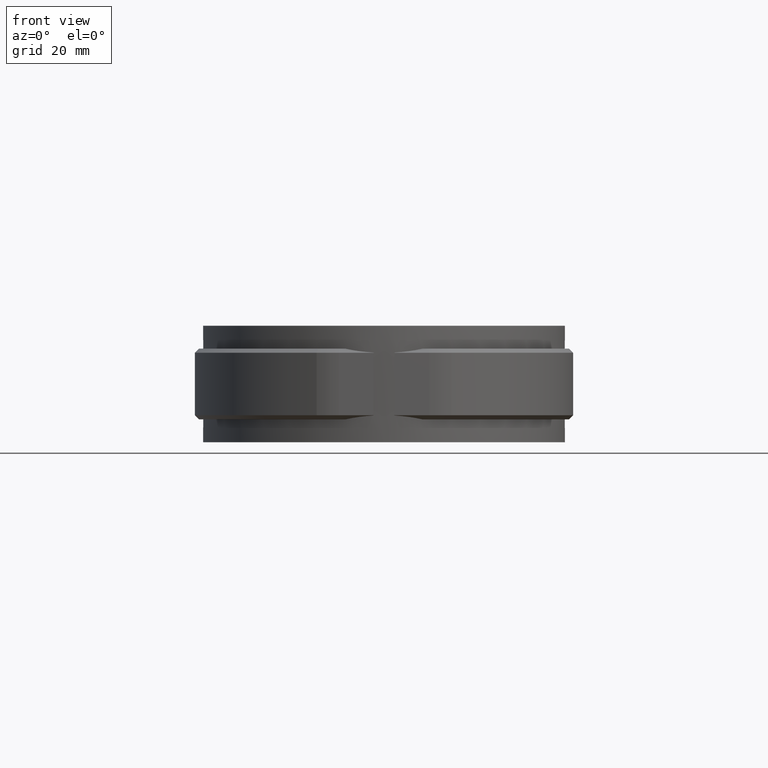
[diagram: clean part render]
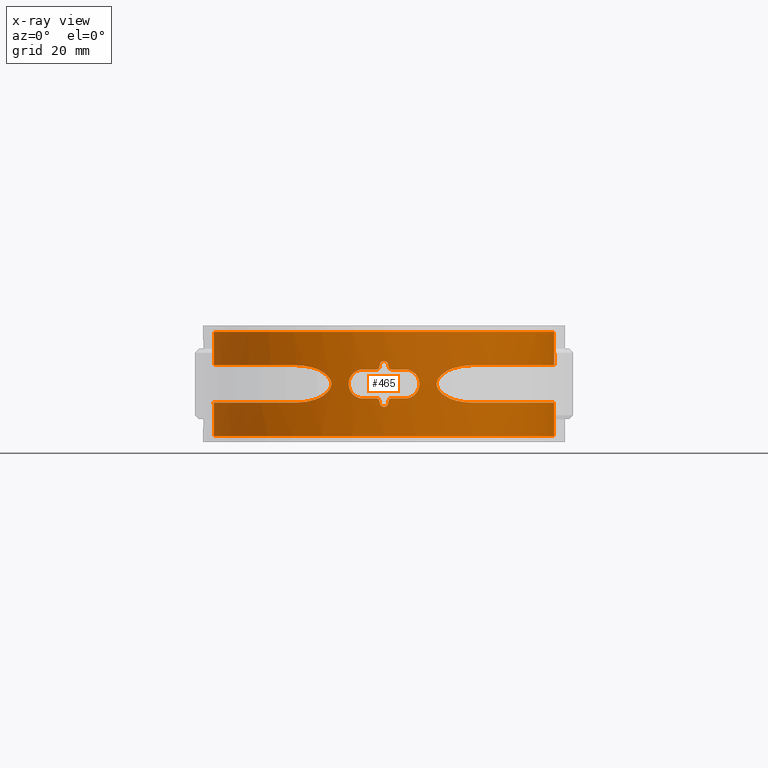
[diagram: x-ray — body ghosted, one internal face saturated and labeled with its STEP entity id]
A machine part, front view, then the same camera in x-ray: the body is ghosted and one INTERNAL B-rep face — a face not visible from any outside direction — is saturated and labeled: STEP entity #465.
In plain terms, the highlighted cylindrical surface (partial cylindrical patch) has radius 41 mm, axis along (0, 0, -1).
Its self-contained STEP definition (entity closure, byte-faithful):
#465 = ADVANCED_FACE( '', ( #833, #834 ), #835, .T. );
#833 = FACE_BOUND( '', #1599, .T. );
#834 = FACE_OUTER_BOUND( '', #1600, .T. );
#835 = CYLINDRICAL_SURFACE( '', #1601, 41.0000000000000 );
#1599 = EDGE_LOOP( '', ( #3098, #3099, #3100, #3101, #3102, #3103, #3104, #3105, #3106, #3107, #3108, #3109, #3110, #3111, #3112, #3113 ) );
#1600 = EDGE_LOOP( '', ( #3114, #3115, #3116, #3117, #3118, #3119, #3120, #3121, #3122, #3123, #3124, #3125, #3126, #3127, #3128, #3129 ) );
#1601 = AXIS2_PLACEMENT_3D( '', #3130, #3131, #3132 );
#3098 = ORIENTED_EDGE( '', *, *, #7267, .F. );
#3099 = ORIENTED_EDGE( '', *, *, #7268, .F. );
#3100 = ORIENTED_EDGE( '', *, *, #7269, .F. );
#3101 = ORIENTED_EDGE( '', *, *, #7270, .F. );
#3102 = ORIENTED_EDGE( '', *, *, #7271, .F. );
#3103 = ORIENTED_EDGE( '', *, *, #7272, .F. );
#3104 = ORIENTED_EDGE( '', *, *, #7273, .F. );
#3105 = ORIENTED_EDGE( '', *, *, #7274, .F. );
#3106 = ORIENTED_EDGE( '', *, *, #7275, .F. );
#3107 = ORIENTED_EDGE( '', *, *, #7230, .F. );
#3108 = ORIENTED_EDGE( '', *, *, #7234, .F. );
#3109 = ORIENTED_EDGE( '', *, *, #7266, .F. );
#3110 = ORIENTED_EDGE( '', *, *, #7276, .F. );
#3111 = ORIENTED_EDGE( '', *, *, #7277, .F. );
#3112 = ORIENTED_EDGE( '', *, *, #7278, .F. );
#3113 = ORIENTED_EDGE( '', *, *, #7279, .F. );
#3114 = ORIENTED_EDGE( '', *, *, #7280, .F. );
#3115 = ORIENTED_EDGE( '', *, *, #7281, .T. );
#3116 = ORIENTED_EDGE( '', *, *, #7282, .F. );
#3117 = ORIENTED_EDGE( '', *, *, #7283, .F. );
#3118 = ORIENTED_EDGE( '', *, *, #7284, .F. );
#3119 = ORIENTED_EDGE( '', *, *, #7285, .F. );
#3120 = ORIENTED_EDGE( '', *, *, #7286, .F. );
#3121 = ORIENTED_EDGE( '', *, *, #7287, .F. );
#3122 = ORIENTED_EDGE( '', *, *, #7288, .F. );
#3123 = ORIENTED_EDGE( '', *, *, #7289, .F. );
#3124 = ORIENTED_EDGE( '', *, *, #7290, .T. );
#3125 = ORIENTED_EDGE( '', *, *, #7291, .T. );
#3126 = ORIENTED_EDGE( '', *, *, #7292, .F. );
#3127 = ORIENTED_EDGE( '', *, *, #7293, .F. );
#3128 = ORIENTED_EDGE( '', *, *, #7294, .F. );
#3129 = ORIENTED_EDGE( '', *, *, #7295, .F. );
#3130 = CARTESIAN_POINT( '', ( 0.000000000000000, 0.000000000000000, -12.5000000000000 ) );
#3131 = DIRECTION( '', ( 0.000000000000000, 0.000000000000000, -1.00000000000000 ) );
#3132 = DIRECTION( '', ( -1.00000000000000, 6.16283340149655E-017, 0.000000000000000 ) );
#7230 = EDGE_CURVE( '', #8243, #8245, #8246, .F. );
#7234 = EDGE_CURVE( '', #8250, #8243, #8252, .T. );
#7266 = EDGE_CURVE( '', #8312, #8250, #8314, .F. );
#7267 = EDGE_CURVE( '', #8315, #8316, #8317, .T. );
#7268 = EDGE_CURVE( '', #8318, #8315, #8319, .F. );
#7269 = EDGE_CURVE( '', #8320, #8318, #8321, .T. );
#7270 = EDGE_CURVE( '', #8322, #8320, #8323, .F. );
#7271 = EDGE_CURVE( '', #8324, #8322, #8325, .T. );
#7272 = EDGE_CURVE( '', #8326, #8324, #8327, .F. );
#7273 = EDGE_CURVE( '', #8328, #8326, #8329, .T. );
#7274 = EDGE_CURVE( '', #8330, #8328, #8331, .F. );
#7275 = EDGE_CURVE( '', #8245, #8330, #8332, .T. );
#7276 = EDGE_CURVE( '', #8333, #8312, #8334, .T. );
#7277 = EDGE_CURVE( '', #8335, #8333, #8336, .F. );
#7278 = EDGE_CURVE( '', #8337, #8335, #8338, .T. );
#7279 = EDGE_CURVE( '', #8316, #8337, #8339, .F. );
#7280 = EDGE_CURVE( '', #8340, #8341, #8342, .T. );
#7281 = EDGE_CURVE( '', #8340, #8343, #8344, .T. );
#7282 = EDGE_CURVE( '', #8345, #8343, #8346, .T. );
#7283 = EDGE_CURVE( '', #8347, #8345, #8348, .T. );
#7284 = EDGE_CURVE( '', #8349, #8347, #8350, .T. );
#7285 = EDGE_CURVE( '', #8351, #8349, #8352, .T. );
#7286 = EDGE_CURVE( '', #8353, #8351, #8354, .T. );
#7287 = EDGE_CURVE( '', #8355, #8353, #8356, .T. );
#7288 = EDGE_CURVE( '', #8357, #8355, #8358, .T. );
#7289 = EDGE_CURVE( '', #8359, #8357, #8360, .T. );
#7290 = EDGE_CURVE( '', #8359, #8361, #8362, .T. );
#7291 = EDGE_CURVE( '', #8361, #8363, #8364, .T. );
#7292 = EDGE_CURVE( '', #8365, #8363, #8366, .T. );
#7293 = EDGE_CURVE( '', #8367, #8365, #8368, .T. );
#7294 = EDGE_CURVE( '', #8369, #8367, #8370, .T. );
#7295 = EDGE_CURVE( '', #8341, #8369, #8371, .T. );
#8243 = VERTEX_POINT( '', #9929 );
#8245 = VERTEX_POINT( '', #9932 );
#8246 = ELLIPSE( '', #9933, 186.777873057438, 41.0000000000000 );
#8250 = VERTEX_POINT( '', #9943 );
#8252 = B_SPLINE_CURVE_WITH_KNOTS( '', 3, ( #9946, #9947, #9948, #9949, #9950, #9951 ), .UNSPECIFIED., .F., .F., ( 4, 2, 4 ), ( 2.21134721367331E-018, 0.000335892743324593, 0.000671785486649184 ), .UNSPECIFIED. );
#8312 = VERTEX_POINT( '', #10406 );
#8314 = CIRCLE( '', #10409, 41.0000000000000 );
#8315 = VERTEX_POINT( '', #10410 );
#8316 = VERTEX_POINT( '', #10411 );
#8317 = B_SPLINE_CURVE_WITH_KNOTS( '', 3, ( #10412, #10413, #10414, #10415, #10416, #10417, #10418, #10419, #10420, #10421 ), .UNSPECIFIED., .F., .F., ( 4, 2, 2, 2, 4 ), ( 1.08420217248550E-019, 0.000671574166790834, 0.00134314833358167, 0.00201472250037250, 0.00268629666716334 ), .UNSPECIFIED. );
#8318 = VERTEX_POINT( '', #10422 );
#8319 = ELLIPSE( '', #10423, 186.777873057452, 41.0000000000000 );
#8320 = VERTEX_POINT( '', #10424 );
#8321 = B_SPLINE_CURVE_WITH_KNOTS( '', 3, ( #10425, #10426, #10427, #10428, #10429, #10430 ), .UNSPECIFIED., .F., .F., ( 4, 2, 4 ), ( 2.63797774002510E-018, 0.000335892743324650, 0.000671785486649297 ), .UNSPECIFIED. );
#8322 = VERTEX_POINT( '', #10431 );
#8323 = CIRCLE( '', #10432, 41.0000000000000 );
#8324 = VERTEX_POINT( '', #10433 );
#8325 = B_SPLINE_CURVE_WITH_KNOTS( '', 3, ( #10434, #10435, #10436, #10437, #10438, #10439, #10440, #10441, #10442, #10443, #10444, #10445, #10446, #10447, #10448, #10449, #10450, #10451, #10452, #10453, #10454, #10455, #10456, #10457, #10458, #10459, #10460, #10461, #10462, #10463, #10464, #10465, #10466, #10467 ), .UNSPECIFIED., .F., .F., ( 4, 2, 2, 2, 2, 2, 2, 2, 2, 2, 2, 2, 2, 2, 2, 2, 4 ), ( 5.27595548005020E-018, 0.000688129622012200, 0.00137625924402439, 0.00206438886603659, 0.00275251848804878, 0.00344064811006098, 0.00412877773207317, 0.00481690735408536, 0.00550503697609755, 0.00619316659810975, 0.00688129622012194, 0.00756942584213413, 0.00825755546414632, 0.00894568508615851, 0.00963381470817071, 0.0103219443301829, 0.0110100739521951 ), .UNSPECIFIED. );
#8326 = VERTEX_POINT( '', #10468 );
#8327 = CIRCLE( '', #10469, 41.0000000000000 );
#8328 = VERTEX_POINT( '', #10470 );
#8329 = B_SPLINE_CURVE_WITH_KNOTS( '', 3, ( #10471, #10472, #10473, #10474, #10475, #10476 ), .UNSPECIFIED., .F., .F., ( 4, 2, 4 ), ( 0.000000000000000, 0.000335894973553405, 0.000671789947106809 ), .UNSPECIFIED. );
#8330 = VERTEX_POINT( '', #10477 );
#8331 = ELLIPSE( '', #10478, 186.777968337168, 41.0000000000000 );
#8332 = B_SPLINE_CURVE_WITH_KNOTS( '', 3, ( #10479, #10480, #10481, #10482, #10483, #10484, #10485, #10486, #10487, #10488 ), .UNSPECIFIED., .F., .F., ( 4, 2, 2, 2, 4 ), ( 0.000000000000000, 0.000671574166790834, 0.00134314833358167, 0.00201472250037250, 0.00268629666716334 ), .UNSPECIFIED. );
#8333 = VERTEX_POINT( '', #10489 );
#8334 = B_SPLINE_CURVE_WITH_KNOTS( '', 3, ( #10490, #10491, #10492, #10493, #10494, #10495, #10496, #10497, #10498, #10499, #10500, #10501, #10502, #10503, #10504, #10505, #10506, #10507, #10508, #10509, #10510, #10511, #10512, #10513, #10514, #10515, #10516, #10517, #10518, #10519, #10520, #10521, #10522, #10523 ), .UNSPECIFIED., .F., .F., ( 4, 2, 2, 2, 2, 2, 2, 2, 2, 2, 2, 2, 2, 2, 2, 2, 4 ), ( 2.63797774002510E-018, 0.000688129622012189, 0.00137625924402438, 0.00206438886603656, 0.00275251848804875, 0.00344064811006094, 0.00412877773207313, 0.00481690735408531, 0.00550503697609750, 0.00619316659810969, 0.00688129622012188, 0.00756942584213407, 0.00825755546414626, 0.00894568508615845, 0.00963381470817064, 0.0103219443301828, 0.0110100739521950 ), .UNSPECIFIED. );
#8335 = VERTEX_POINT( '', #10524 );
#8336 = CIRCLE( '', #10525, 41.0000000000000 );
#8337 = VERTEX_POINT( '', #10526 );
#8338 = B_SPLINE_CURVE_WITH_KNOTS( '', 3, ( #10527, #10528, #10529, #10530, #10531, #10532 ), .UNSPECIFIED., .F., .F., ( 4, 2, 4 ), ( 0.000000000000000, 0.000335894973553420, 0.000671789947106840 ), .UNSPECIFIED. );
#8339 = ELLIPSE( '', #10533, 186.777968337208, 41.0000000000000 );
#8340 = VERTEX_POINT( '', #10534 );
#8341 = VERTEX_POINT( '', #10535 );
#8342 = B_SPLINE_CURVE_WITH_KNOTS( '', 3, ( #10536, #10537, #10538, #10539, #10540, #10541, #10542, #10543, #10544, #10545, #10546, #10547, #10548, #10549, #10550, #10551, #10552, #10553, #10554, #10555, #10556, #10557, #10558, #10559, #10560, #10561, #10562, #10563, #10564, #10565, #10566, #10567, #10568, #10569, #10570, #10571, #10572, #10573, #10574, #10575, #10576, #10577, #10578, #10579, #10580, #10581, #10582, #10583, #10584, #10585, #10586, #10587, #10588, #10589, #10590, #10591, #10592, #10593 ), .UNSPECIFIED., .F., .F., ( 4, 2, 2, 2, 2, 2, 2, 2, 2, 2, 2, 2, 2, 2, 2, 2, 2, 2, 2, 2, 2, 2, 2, 2, 2, 2, 2, 2, 4 ), ( 1.73472347597681E-018, 0.00624023216993618, 0.00936034825490427, 0.0109204062973883, 0.0124804643398723, 0.0187206965098085, 0.0218408125947766, 0.0249609286797447, 0.0312011608496809, 0.0343212769346490, 0.0358813349771330, 0.0374413930196171, 0.0436816251895533, 0.0499218573594895, 0.0514819154019736, 0.0530419734444576, 0.0561620895294258, 0.0624023216993620, 0.0639623797418460, 0.0655224377843301, 0.0686425538692982, 0.0748827860392344, 0.0780029021242025, 0.0795629601666866, 0.0811230182091706, 0.0873632503791069, 0.0904833664640750, 0.0936034825490431, 0.0998437147189794 ), .UNSPECIFIED. );
#8343 = VERTEX_POINT( '', #10594 );
#8344 = LINE( '', #10595, #10596 );
#8345 = VERTEX_POINT( '', #10597 );
#8346 = CIRCLE( '', #10598, 41.0000000000000 );
#8347 = VERTEX_POINT( '', #10599 );
#8348 = LINE( '', #10600, #10601 );
#8349 = VERTEX_POINT( '', #10602 );
#8350 = B_SPLINE_CURVE_WITH_KNOTS( '', 3, ( #10603, #10604, #10605, #10606, #10607, #10608, #10609, #10610, #10611, #10612, #10613, #10614, #10615, #10616, #10617, #10618, #10619, #10620, #10621, #10622, #10623, #10624, #10625, #10626, #10627, #10628, #10629, #10630, #10631, #10632, #10633, #10634, #10635, #10636, #10637, #10638, #10639, #10640, #10641, #10642, #10643, #10644, #10645, #10646, #10647, #10648, #10649, #10650, #10651, #10652, #10653, #10654, #10655, #10656, #10657, #10658, #10659, #10660 ), .UNSPECIFIED., .F., .F., ( 4, 2, 2, 2, 2, 2, 2, 2, 2, 2, 2, 2, 2, 2, 2, 2, 2, 2, 2, 2, 2, 2, 2, 2, 2, 2, 2, 2, 4 ), ( 0.000000000000000, 0.00624022679092022, 0.00936034018638033, 0.0109203968841104, 0.0124804535818404, 0.0187206803727606, 0.0218407937682208, 0.0249609071636809, 0.0312011339546011, 0.0343212473500612, 0.0358813040477912, 0.0374413607455213, 0.0436815875364415, 0.0499218143273617, 0.0514818710250918, 0.0530419277228218, 0.0561620411182819, 0.0624022679092021, 0.0639623246069322, 0.0655223813046622, 0.0686424947001223, 0.0748827214910425, 0.0780028348865027, 0.0795628915842327, 0.0811229482819628, 0.0873631750728830, 0.0904832884683431, 0.0936034018638032, 0.0998436286547234 ), .UNSPECIFIED. );
#8351 = VERTEX_POINT( '', #10661 );
#8352 = B_SPLINE_CURVE_WITH_KNOTS( '', 3, ( #10662, #10663, #10664, #10665, #10666, #10667, #10668, #10669, #10670, #10671 ), .UNSPECIFIED., .F., .F., ( 4, 2, 2, 2, 4 ), ( 7.75791922889773E-018, 0.00191596705355848, 0.00383193410711695, 0.00574790116067541, 0.00766386821423388 ), .UNSPECIFIED. );
#8353 = VERTEX_POINT( '', #10672 );
#8354 = B_SPLINE_CURVE_WITH_KNOTS( '', 3, ( #10673, #10674, #10675, #10676, #10677, #10678, #10679, #10680, #10681, #10682, #10683, #10684, #10685, #10686, #10687, #10688, #10689, #10690, #10691, #10692 ), .UNSPECIFIED., .F., .F., ( 4, 2, 2, 2, 2, 2, 2, 2, 2, 4 ), ( 0.000000000000000, 0.000831438154686182, 0.00166287630937236, 0.00249431446405854, 0.00291003354140164, 0.00332575261874473, 0.00415719077343091, 0.00498862892811709, 0.00582006708280327, 0.00665150523748945 ), .UNSPECIFIED. );
#8355 = VERTEX_POINT( '', #10693 );
#8356 = B_SPLINE_CURVE_WITH_KNOTS( '', 3, ( #10694, #10695, #10696, #10697, #10698, #10699, #10700, #10701, #10702, #10703 ), .UNSPECIFIED., .F., .F., ( 4, 2, 2, 2, 4 ), ( 0.000000000000000, 0.00193123202437198, 0.00386246404874397, 0.00579369607311595, 0.00772492809748794 ), .UNSPECIFIED. );
#8357 = VERTEX_POINT( '', #10704 );
#8358 = B_SPLINE_CURVE_WITH_KNOTS( '', 3, ( #10705, #10706, #10707, #10708, #10709, #10710, #10711, #10712, #10713, #10714, #10715, #10716, #10717, #10718, #10719, #10720, #10721, #10722, #10723, #10724, #10725, #10726, #10727, #10728, #10729, #10730, #10731, #10732, #10733, #10734, #10735, #10736, #10737, #10738, #10739, #10740, #10741, #10742, #10743, #10744, #10745, #10746, #10747, #10748, #10749, #10750, #10751, #10752, #10753, #10754, #10755, #10756, #10757, #10758, #10759, #10760, #10761, #10762 ), .UNSPECIFIED., .F., .F., ( 4, 2, 2, 2, 2, 2, 2, 2, 2, 2, 2, 2, 2, 2, 2, 2, 2, 2, 2, 2, 2, 2, 2, 2, 2, 2, 2, 2, 4 ), ( 1.73472347597681E-018, 0.00624023216993619, 0.00936034825490429, 0.0109204062973883, 0.0124804643398724, 0.0187206965098086, 0.0218408125947767, 0.0249609286797448, 0.0312011608496809, 0.0343212769346491, 0.0358813349771331, 0.0374413930196172, 0.0436816251895534, 0.0499218573594896, 0.0514819154019736, 0.0530419734444577, 0.0561620895294258, 0.0624023216993620, 0.0639623797418461, 0.0655224377843301, 0.0686425538692982, 0.0748827860392344, 0.0780029021242025, 0.0795629601666866, 0.0811230182091707, 0.0873632503791069, 0.0904833664640750, 0.0936034825490431, 0.0998437147189794 ), .UNSPECIFIED. );
#8359 = VERTEX_POINT( '', #10763 );
#8360 = LINE( '', #10764, #10765 );
#8361 = VERTEX_POINT( '', #10766 );
#8362 = CIRCLE( '', #10767, 41.0000000000000 );
#8363 = VERTEX_POINT( '', #10768 );
#8364 = LINE( '', #10769, #10770 );
#8365 = VERTEX_POINT( '', #10771 );
#8366 = B_SPLINE_CURVE_WITH_KNOTS( '', 3, ( #10772, #10773, #10774, #10775, #10776, #10777, #10778, #10779, #10780, #10781, #10782, #10783, #10784, #10785, #10786, #10787, #10788, #10789, #10790, #10791, #10792, #10793, #10794, #10795, #10796, #10797, #10798, #10799, #10800, #10801, #10802, #10803, #10804, #10805, #10806, #10807, #10808, #10809, #10810, #10811, #10812, #10813, #10814, #10815, #10816, #10817, #10818, #10819, #10820, #10821, #10822, #10823, #10824, #10825, #10826, #10827, #10828, #10829 ), .UNSPECIFIED., .F., .F., ( 4, 2, 2, 2, 2, 2, 2, 2, 2, 2, 2, 2, 2, 2, 2, 2, 2, 2, 2, 2, 2, 2, 2, 2, 2, 2, 2, 2, 4 ), ( 9.81307786677359E-018, 0.00624022679092019, 0.00936034018638029, 0.0109203968841103, 0.0124804535818404, 0.0187206803727606, 0.0218407937682207, 0.0249609071636808, 0.0312011339546010, 0.0343212473500611, 0.0358813040477912, 0.0374413607455212, 0.0436815875364414, 0.0499218143273616, 0.0514818710250917, 0.0530419277228218, 0.0561620411182819, 0.0624022679092021, 0.0639623246069322, 0.0655223813046622, 0.0686424947001223, 0.0748827214910425, 0.0780028348865027, 0.0795628915842327, 0.0811229482819628, 0.0873631750728830, 0.0904832884683431, 0.0936034018638032, 0.0998436286547234 ), .UNSPECIFIED. );
#8367 = VERTEX_POINT( '', #10830 );
#8368 = B_SPLINE_CURVE_WITH_KNOTS( '', 3, ( #10831, #10832, #10833, #10834, #10835, #10836, #10837, #10838, #10839, #10840 ), .UNSPECIFIED., .F., .F., ( 4, 2, 2, 2, 4 ), ( 9.86180092906132E-016, 0.00191596705355922, 0.00383193410711744, 0.00574790116067567, 0.00766386821423390 ), .UNSPECIFIED. );
#8369 = VERTEX_POINT( '', #10841 );
#8370 = B_SPLINE_CURVE_WITH_KNOTS( '', 3, ( #10842, #10843, #10844, #10845, #10846, #10847, #10848, #10849, #10850, #10851, #10852, #10853, #10854, #10855, #10856, #10857, #10858, #10859, #10860, #10861 ), .UNSPECIFIED., .F., .F., ( 4, 2, 2, 2, 2, 2, 2, 2, 2, 4 ), ( 0.000000000000000, 0.000831438154686251, 0.00166287630937250, 0.00249431446405875, 0.00291003354140188, 0.00332575261874500, 0.00415719077343125, 0.00498862892811750, 0.00582006708280375, 0.00665150523749000 ), .UNSPECIFIED. );
#8371 = B_SPLINE_CURVE_WITH_KNOTS( '', 3, ( #10862, #10863, #10864, #10865, #10866, #10867, #10868, #10869, #10870, #10871 ), .UNSPECIFIED., .F., .F., ( 4, 2, 2, 2, 4 ), ( 0.000000000000000, 0.00193123202437173, 0.00386246404874347, 0.00579369607311520, 0.00772492809748694 ), .UNSPECIFIED. );
#9929 = CARTESIAN_POINT( '', ( -1.16219500000001, -40.9835247725470, -3.89024399999999 ) );
#9932 = CARTESIAN_POINT( '', ( -0.975609757981835, -40.9883908637572, -4.71951218674743 ) );
#9933 = AXIS2_PLACEMENT_3D( '', #14298, #14299, #14300 );
#9943 = CARTESIAN_POINT( '', ( -1.64999999999996, -40.9667853266521, -3.49999999999999 ) );
#9946 = CARTESIAN_POINT( '', ( -1.64999999999996, -40.9667853266521, -3.50000000000000 ) );
#9947 = CARTESIAN_POINT( '', ( -1.53651666657476, -40.9713560416511, -3.49999999951294 ) );
#9948 = CARTESIAN_POINT( '', ( -1.42637767402739, -40.9752768915356, -3.53860838388255 ) );
#9949 = CARTESIAN_POINT( '', ( -1.24905052409405, -40.9810656571451, -3.68042415403882 ) );
#9950 = CARTESIAN_POINT( '', ( -1.18712614781943, -40.9828177846659, -3.77943889635967 ) );
#9951 = CARTESIAN_POINT( '', ( -1.16219500000001, -40.9835247725470, -3.89024399999999 ) );
#10406 = CARTESIAN_POINT( '', ( -4.99999999999995, -40.6939798987516, -3.49999999999999 ) );
#10409 = AXIS2_PLACEMENT_3D( '', #14335, #14336, #14337 );
#10410 = CARTESIAN_POINT( '', ( 0.975609757981830, -40.9883908637572, 4.71951218674745 ) );
#10411 = CARTESIAN_POINT( '', ( -0.975610000000001, -40.9883908579966, 4.71951200000000 ) );
#10412 = CARTESIAN_POINT( '', ( 0.975609757981829, -40.9883908637572, 4.71951218674745 ) );
#10413 = CARTESIAN_POINT( '', ( 0.925763168011452, -40.9895773172517, 4.94105249648842 ) );
#10414 = CARTESIAN_POINT( '', ( 0.802005698969524, -40.9925387307254, 5.13901852027221 ) );
#10415 = CARTESIAN_POINT( '', ( 0.447393622458611, -40.9979424322463, 5.42271163399464 ) );
#10416 = CARTESIAN_POINT( '', ( 0.227081011032095, -41.0000000031880, 5.50000011143156 ) );
#10417 = CARTESIAN_POINT( '', ( -0.227082162214952, -40.9999999968121, 5.49999989543548 ) );
#10418 = CARTESIAN_POINT( '', ( -0.447405711665567, -40.9979422732895, 5.42270422268405 ) );
#10419 = CARTESIAN_POINT( '', ( -0.802005289724038, -40.9925387116981, 5.13901690743699 ) );
#10420 = CARTESIAN_POINT( '', ( -0.925763452085173, -40.9895773107846, 4.94105232084168 ) );
#10421 = CARTESIAN_POINT( '', ( -0.975610000000001, -40.9883908579966, 4.71951200000000 ) );
#10422 = CARTESIAN_POINT( '', ( 1.16219499999999, -40.9835247725470, 3.89024400000000 ) );
#10423 = AXIS2_PLACEMENT_3D( '', #14338, #14339, #14340 );
#10424 = CARTESIAN_POINT( '', ( 1.65000000000005, -40.9667853266521, 3.50000000000000 ) );
#10425 = CARTESIAN_POINT( '', ( 1.65000000000005, -40.9667853266521, 3.49999999999999 ) );
#10426 = CARTESIAN_POINT( '', ( 1.53651666657483, -40.9713560416511, 3.49999999951292 ) );
#10427 = CARTESIAN_POINT( '', ( 1.42637767402744, -40.9752768915356, 3.53860838388253 ) );
#10428 = CARTESIAN_POINT( '', ( 1.24905052409406, -40.9810656571451, 3.68042415403881 ) );
#10429 = CARTESIAN_POINT( '', ( 1.18712614781942, -40.9828177846659, 3.77943889635967 ) );
#10430 = CARTESIAN_POINT( '', ( 1.16219499999999, -40.9835247725470, 3.89024400000000 ) );
#10431 = CARTESIAN_POINT( '', ( 5.00000000000004, -40.6939798987516, 3.50000000000001 ) );
#10432 = AXIS2_PLACEMENT_3D( '', #14341, #14342, #14343 );
#10433 = CARTESIAN_POINT( '', ( 5.00000000000004, -40.6939798987516, -3.49999999999999 ) );
#10434 = CARTESIAN_POINT( '', ( 5.00000000000004, -40.6939798987516, -3.50000000000002 ) );
#10435 = CARTESIAN_POINT( '', ( 5.23096274637325, -40.6656018994815, -3.50000000000002 ) );
#10436 = CARTESIAN_POINT( '', ( 5.45783142829143, -40.6357326567652, -3.47736464133885 ) );
#10437 = CARTESIAN_POINT( '', ( 5.90378777278409, -40.5733407841364, -3.38892934823538 ) );
#10438 = CARTESIAN_POINT( '', ( 6.12509801952410, -40.5404601344444, -3.32210998994858 ) );
#10439 = CARTESIAN_POINT( '', ( 6.54766795793600, -40.4743595128308, -3.14753621596820 ) );
#10440 = CARTESIAN_POINT( '', ( 6.74804660481484, -40.4413265822082, -3.04075624735714 ) );
#10441 = CARTESIAN_POINT( '', ( 7.12735373686826, -40.3762040986906, -2.78858952997369 ) );
#10442 = CARTESIAN_POINT( '', ( 7.30729633441415, -40.3439018002663, -2.64165168159092 ) );
#10443 = CARTESIAN_POINT( '', ( 7.63038430555085, -40.2840443294622, -2.32013326918194 ) );
#10444 = CARTESIAN_POINT( '', ( 7.77549722043973, -40.2561640135411, -2.14462971807600 ) );
#10445 = CARTESIAN_POINT( '', ( 8.03211134382634, -40.2057494081452, -1.76327032725078 ) );
#10446 = CARTESIAN_POINT( '', ( 8.14201818355735, -40.1835242013315, -1.55884340630319 ) );
#10447 = CARTESIAN_POINT( '', ( 8.31810763079867, -40.1474427925718, -1.13685213709418 ) );
#10448 = CARTESIAN_POINT( '', ( 8.38582085039330, -40.1332803178743, -0.916573088931497 ) );
#10449 = CARTESIAN_POINT( '', ( 8.47721444358778, -40.1140750321554, -0.461377038457589 ) );
#10450 = CARTESIAN_POINT( '', ( 8.49978992563415, -40.1092703905914, -0.232768203784279 ) );
#10451 = CARTESIAN_POINT( '', ( 8.50020718421148, -40.1091819646195, 0.226407216884869 ) );
#10452 = CARTESIAN_POINT( '', ( 8.47733112674555, -40.1140496811669, 0.459590061325888 ) );
#10453 = CARTESIAN_POINT( '', ( 8.38710963868419, -40.1330103127626, 0.911341365809616 ) );
#10454 = CARTESIAN_POINT( '', ( 8.32038124472901, -40.1469721884948, 1.13048604967823 ) );
#10455 = CARTESIAN_POINT( '', ( 8.14382967027043, -40.1831576442548, 1.55539876661665 ) );
#10456 = CARTESIAN_POINT( '', ( 8.03357492031817, -40.2054533064194, 1.76054879452900 ) );
#10457 = CARTESIAN_POINT( '', ( 7.77919898760970, -40.2554451557327, 2.13966395547761 ) );
#10458 = CARTESIAN_POINT( '', ( 7.63409835237039, -40.2833482775417, 2.31618801100058 ) );
#10459 = CARTESIAN_POINT( '', ( 7.30735969115506, -40.3438979332373, 2.64183502283848 ) );
#10460 = CARTESIAN_POINT( '', ( 7.13087699618605, -40.3755792827542, 2.78585998561067 ) );
#10461 = CARTESIAN_POINT( '', ( 6.75270263520294, -40.4405466861320, 3.03803984583057 ) );
#10462 = CARTESIAN_POINT( '', ( 6.54864375051778, -40.4742006510111, 3.14704402356577 ) );
#10463 = CARTESIAN_POINT( '', ( 6.12644708780977, -40.5402552950739, 3.32164123749746 ) );
#10464 = CARTESIAN_POINT( '', ( 5.90909724577156, -40.5725714061867, 3.38755621314808 ) );
#10465 = CARTESIAN_POINT( '', ( 5.46188170333050, -40.6351920018711, 3.47687506126350 ) );
#10466 = CARTESIAN_POINT( '', ( 5.23096110318785, -40.6656021013769, 3.50000000000001 ) );
#10467 = CARTESIAN_POINT( '', ( 5.00000000000005, -40.6939798987516, 3.50000000000001 ) );
#10468 = CARTESIAN_POINT( '', ( 1.65000000000002, -40.9667853266521, -3.49999999999999 ) );
#10469 = AXIS2_PLACEMENT_3D( '', #14344, #14345, #14346 );
#10470 = CARTESIAN_POINT( '', ( 1.16219512100914, -40.9835247691155, -3.89024390662629 ) );
#10471 = CARTESIAN_POINT( '', ( 1.16219512100914, -40.9835247691155, -3.89024390662629 ) );
#10472 = CARTESIAN_POINT( '', ( 1.18712626199284, -40.9828177813545, -3.77943883114633 ) );
#10473 = CARTESIAN_POINT( '', ( 1.24904834749449, -40.9810657261259, -3.68042631638131 ) );
#10474 = CARTESIAN_POINT( '', ( 1.42637793620379, -40.9752768850503, -3.53860782463066 ) );
#10475 = CARTESIAN_POINT( '', ( 1.53651669485123, -40.9713560405122, -3.50000000000002 ) );
#10476 = CARTESIAN_POINT( '', ( 1.65000000000002, -40.9667853266521, -3.50000000000002 ) );
#10477 = CARTESIAN_POINT( '', ( 0.975609999999999, -40.9883908579966, -4.71951200000000 ) );
#10478 = AXIS2_PLACEMENT_3D( '', #14347, #14348, #14349 );
#10479 = CARTESIAN_POINT( '', ( -0.975609757981835, -40.9883908637572, -4.71951218674743 ) );
#10480 = CARTESIAN_POINT( '', ( -0.925763168011458, -40.9895773172517, -4.94105249648841 ) );
#10481 = CARTESIAN_POINT( '', ( -0.802005698969532, -40.9925387307254, -5.13901852027220 ) );
#10482 = CARTESIAN_POINT( '', ( -0.447393622458619, -40.9979424322463, -5.42271163399462 ) );
#10483 = CARTESIAN_POINT( '', ( -0.227081011032103, -41.0000000031880, -5.50000011143155 ) );
#10484 = CARTESIAN_POINT( '', ( 0.227082162214945, -40.9999999968120, -5.49999989543546 ) );
#10485 = CARTESIAN_POINT( '', ( 0.447405711665560, -40.9979422732895, -5.42270422268404 ) );
#10486 = CARTESIAN_POINT( '', ( 0.802005289724033, -40.9925387116981, -5.13901690743698 ) );
#10487 = CARTESIAN_POINT( '', ( 0.925763452085169, -40.9895773107847, -4.94105232084167 ) );
#10488 = CARTESIAN_POINT( '', ( 0.975609999999998, -40.9883908579966, -4.71951199999999 ) );
#10489 = CARTESIAN_POINT( '', ( -4.99999999999995, -40.6939798987516, 3.50000000000000 ) );
#10490 = CARTESIAN_POINT( '', ( -4.99999999999995, -40.6939798987516, 3.49999999999999 ) );
#10491 = CARTESIAN_POINT( '', ( -5.23096274637316, -40.6656018994815, 3.49999999999999 ) );
#10492 = CARTESIAN_POINT( '', ( -5.45783142829133, -40.6357326567652, 3.47736464133883 ) );
#10493 = CARTESIAN_POINT( '', ( -5.90378777278399, -40.5733407841364, 3.38892934823535 ) );
#10494 = CARTESIAN_POINT( '', ( -6.12509801952400, -40.5404601344445, 3.32210998994855 ) );
#10495 = CARTESIAN_POINT( '', ( -6.54766795793590, -40.4743595128308, 3.14753621596818 ) );
#10496 = CARTESIAN_POINT( '', ( -6.74804660481473, -40.4413265822082, 3.04075624735712 ) );
#10497 = CARTESIAN_POINT( '', ( -7.12735373686815, -40.3762040986907, 2.78858952997367 ) );
#10498 = CARTESIAN_POINT( '', ( -7.30729633441404, -40.3439018002664, 2.64165168159090 ) );
#10499 = CARTESIAN_POINT( '', ( -7.63038430555075, -40.2840443294623, 2.32013326918193 ) );
#10500 = CARTESIAN_POINT( '', ( -7.77549722043962, -40.2561640135412, 2.14462971807598 ) );
#10501 = CARTESIAN_POINT( '', ( -8.03211134382622, -40.2057494081452, 1.76327032725076 ) );
#10502 = CARTESIAN_POINT( '', ( -8.14201818355724, -40.1835242013315, 1.55884340630318 ) );
#10503 = CARTESIAN_POINT( '', ( -8.31810763079856, -40.1474427925718, 1.13685213709417 ) );
#10504 = CARTESIAN_POINT( '', ( -8.38582085039318, -40.1332803178743, 0.916573088931489 ) );
#10505 = CARTESIAN_POINT( '', ( -8.47721444358767, -40.1140750321554, 0.461377038457584 ) );
#10506 = CARTESIAN_POINT( '', ( -8.49978992563404, -40.1092703905914, 0.232768203784276 ) );
#10507 = CARTESIAN_POINT( '', ( -8.50020718421137, -40.1091819646195, -0.226407216884869 ) );
#10508 = CARTESIAN_POINT( '', ( -8.47733112674544, -40.1140496811669, -0.459590061325888 ) );
#10509 = CARTESIAN_POINT( '', ( -8.38710963868407, -40.1330103127626, -0.911341365809613 ) );
#10510 = CARTESIAN_POINT( '', ( -8.32038124472890, -40.1469721884948, -1.13048604967823 ) );
#10511 = CARTESIAN_POINT( '', ( -8.14382967027031, -40.1831576442548, -1.55539876661664 ) );
#10512 = CARTESIAN_POINT( '', ( -8.03357492031806, -40.2054533064194, -1.76054879452900 ) );
#10513 = CARTESIAN_POINT( '', ( -7.77919898760959, -40.2554451557328, -2.13966395547760 ) );
#10514 = CARTESIAN_POINT( '', ( -7.63409835237028, -40.2833482775417, -2.31618801100057 ) );
#10515 = CARTESIAN_POINT( '', ( -7.30735969115495, -40.3438979332373, -2.64183502283847 ) );
#10516 = CARTESIAN_POINT( '', ( -7.13087699618595, -40.3755792827542, -2.78585998561066 ) );
#10517 = CARTESIAN_POINT( '', ( -6.75270263520284, -40.4405466861321, -3.03803984583055 ) );
#10518 = CARTESIAN_POINT( '', ( -6.54864375051769, -40.4742006510111, -3.14704402356575 ) );
#10519 = CARTESIAN_POINT( '', ( -6.12644708780967, -40.5402552950739, -3.32164123749744 ) );
#10520 = CARTESIAN_POINT( '', ( -5.90909724577146, -40.5725714061867, -3.38755621314807 ) );
#10521 = CARTESIAN_POINT( '', ( -5.46188170333041, -40.6351920018711, -3.47687506126348 ) );
#10522 = CARTESIAN_POINT( '', ( -5.23096110318776, -40.6656021013769, -3.49999999999999 ) );
#10523 = CARTESIAN_POINT( '', ( -4.99999999999995, -40.6939798987516, -3.49999999999999 ) );
#10524 = CARTESIAN_POINT( '', ( -1.65000000000002, -40.9667853266521, 3.50000000000001 ) );
#10525 = AXIS2_PLACEMENT_3D( '', #14350, #14351, #14352 );
#10526 = CARTESIAN_POINT( '', ( -1.16219512100910, -40.9835247691155, 3.89024390662629 ) );
#10527 = CARTESIAN_POINT( '', ( -1.16219512100910, -40.9835247691155, 3.89024390662629 ) );
#10528 = CARTESIAN_POINT( '', ( -1.18712626199280, -40.9828177813545, 3.77943883114633 ) );
#10529 = CARTESIAN_POINT( '', ( -1.24904834749446, -40.9810657261259, 3.68042631638130 ) );
#10530 = CARTESIAN_POINT( '', ( -1.42637793620377, -40.9752768850503, 3.53860782463065 ) );
#10531 = CARTESIAN_POINT( '', ( -1.53651669485122, -40.9713560405122, 3.50000000000000 ) );
#10532 = CARTESIAN_POINT( '', ( -1.65000000000002, -40.9667853266521, 3.50000000000000 ) );
#10533 = AXIS2_PLACEMENT_3D( '', #14353, #14354, #14355 );
#10534 = CARTESIAN_POINT( '', ( 6.67441860465118, 40.4530856213699, 4.46804137598062 ) );
#10535 = CARTESIAN_POINT( '', ( 21.0383495935682, -35.1907352349849, 4.47186643577905 ) );
#10536 = CARTESIAN_POINT( '', ( 6.67441860465118, 40.4530856213699, 4.46804137598062 ) );
#10537 = CARTESIAN_POINT( '', ( 8.74745121432244, 40.1110526909887, 4.46564474181523 ) );
#10538 = CARTESIAN_POINT( '', ( 10.7717928332639, 39.6143376407991, 4.46374867185684 ) );
#10539 = CARTESIAN_POINT( '', ( 13.7374218717373, 38.6440817876219, 4.46411158874183 ) );
#10540 = CARTESIAN_POINT( '', ( 14.7140978452218, 38.2829638065023, 4.46470738620994 ) );
#10541 = CARTESIAN_POINT( '', ( 16.1611090579926, 37.6840954822834, 4.46609099891952 ) );
#10542 = CARTESIAN_POINT( '', ( 16.6404424200950, 37.4749304880366, 4.46663021254695 ) );
#10543 = CARTESIAN_POINT( '', ( 17.5930274756616, 37.0372801817343, 4.46778291497771 ) );
#10544 = CARTESIAN_POINT( '', ( 18.0666103064714, 36.8085841144012, 4.46839680750917 ) );
#10545 = CARTESIAN_POINT( '', ( 20.4023482966377, 35.6248865759360, 4.47134948079676 ) );
#10546 = CARTESIAN_POINT( '', ( 22.1817952645025, 34.5441687566869, 4.47248160048624 ) );
#10547 = CARTESIAN_POINT( '', ( 24.7198346971925, 32.7263300968068, 4.47019059174140 ) );
#10548 = CARTESIAN_POINT( '', ( 25.5438968120291, 32.0874463382872, 4.46911757759358 ) );
#10549 = CARTESIAN_POINT( '', ( 27.1473892348049, 30.7427086410753, 4.46723644059341 ) );
#10550 = CARTESIAN_POINT( '', ( 27.9278186648098, 30.0354119398786, 4.46643190503638 ) );
#10551 = CARTESIAN_POINT( '', ( 30.1655445466955, 27.8459337299383, 4.46516845627853 ) );
#10552 = CARTESIAN_POINT( '', ( 31.5324988868726, 26.2867838087583, 4.46604954867727 ) );
#10553 = CARTESIAN_POINT( '', ( 33.3996600995533, 23.8020183492716, 4.46874078359333 ) );
#10554 = CARTESIAN_POINT( '', ( 33.9913685820664, 22.9493166646014, 4.46981376467949 ) );
#10555 = CARTESIAN_POINT( '', ( 34.8322107203475, 21.6330341075131, 4.47106566782211 ) );
#10556 = CARTESIAN_POINT( '', ( 35.1046962387309, 21.1880615310429, 4.47142012026235 ) );
#10557 = CARTESIAN_POINT( '', ( 35.6338537042559, 20.2855150203417, 4.47185926038853 ) );
#10558 = CARTESIAN_POINT( '', ( 35.8910544368363, 19.8269263788063, 4.47193677914503 ) );
#10559 = CARTESIAN_POINT( '', ( 37.1290175072776, 17.5166443830183, 4.47130089356753 ) );
#10560 = CARTESIAN_POINT( '', ( 37.9665356023554, 15.6151296981311, 4.46818563986444 ) );
#10561 = CARTESIAN_POINT( '', ( 39.3469268503651, 11.7093743883437, 4.46452854130158 ) );
#10562 = CARTESIAN_POINT( '', ( 39.8897930775419, 9.70513134876373, 4.46398689121773 ) );
#10563 = CARTESIAN_POINT( '', ( 40.3780585818296, 7.13347447279031, 4.46553132418376 ) );
#10564 = CARTESIAN_POINT( '', ( 40.4662631939075, 6.61482358679055, 4.46593530566148 ) );
#10565 = CARTESIAN_POINT( '', ( 40.6220402783079, 5.57890594924148, 4.46686814335767 ) );
#10566 = CARTESIAN_POINT( '', ( 40.6897799778887, 5.06096644711198, 4.46739699751907 ) );
#10567 = CARTESIAN_POINT( '', ( 40.8630128256605, 3.50720500128655, 4.46904164708153 ) );
#10568 = CARTESIAN_POINT( '', ( 40.9385631837122, 2.47144003663941, 4.47022671533344 ) );
#10569 = CARTESIAN_POINT( '', ( 41.0474342558206, -0.635630883626757, 4.47259710464636 ) );
#10570 = CARTESIAN_POINT( '', ( 40.9636528569235, -2.70671430341563, 4.47119204401815 ) );
#10571 = CARTESIAN_POINT( '', ( 40.6599638376917, -5.29519008856422, 4.46873967394581 ) );
#10572 = CARTESIAN_POINT( '', ( 40.5892239318381, -5.81286621536873, 4.46824309760154 ) );
#10573 = CARTESIAN_POINT( '', ( 40.4274281444942, -6.84817980549820, 4.46733103037090 ) );
#10574 = CARTESIAN_POINT( '', ( 40.3362413345251, -7.36624390280258, 4.46691565168836 ) );
#10575 = CARTESIAN_POINT( '', ( 40.0344804592536, -8.90707759527054, 4.46590233579167 ) );
#10576 = CARTESIAN_POINT( '', ( 39.7951593965782, -9.92083731948761, 4.46554670407242 ) );
#10577 = CARTESIAN_POINT( '', ( 38.9655529535931, -12.9227157012744, 4.46570318812040 ) );
#10578 = CARTESIAN_POINT( '', ( 38.2642513710750, -14.8716547903906, 4.46764338203889 ) );
#10579 = CARTESIAN_POINT( '', ( 36.9893218308339, -17.7163718857257, 4.47054364832218 ) );
#10580 = CARTESIAN_POINT( '', ( 36.5270262125390, -18.6514405387560, 4.47145770704369 ) );
#10581 = CARTESIAN_POINT( '', ( 35.7760323410077, -20.0337335377292, 4.47192841617050 ) );
#10582 = CARTESIAN_POINT( '', ( 35.5162903951130, -20.4906469753969, 4.47191402494037 ) );
#10583 = CARTESIAN_POINT( '', ( 34.9820896752534, -21.3898784207126, 4.47149510493587 ) );
#10584 = CARTESIAN_POINT( '', ( 34.7071131772999, -21.8331686582608, 4.47111725402024 ) );
#10585 = CARTESIAN_POINT( '', ( 33.2933968304499, -24.0184318322737, 4.46879760989551 ) );
#10586 = CARTESIAN_POINT( '', ( 32.0388235804689, -25.6673775062103, 4.46584263442415 ) );
#10587 = CARTESIAN_POINT( '', ( 29.9737936110301, -27.9936924624111, 4.46424471577747 ) );
#10588 = CARTESIAN_POINT( '', ( 29.2547910105016, -28.7445083397766, 4.46412972282726 ) );
#10589 = CARTESIAN_POINT( '', ( 27.7542280764960, -30.1959000634432, 4.46480990254638 ) );
#10590 = CARTESIAN_POINT( '', ( 26.9700708138993, -30.8984343413026, 4.46561073660555 ) );
#10591 = CARTESIAN_POINT( '', ( 24.5497881204354, -32.9044033686048, 4.46872656074998 ) );
#10592 = CARTESIAN_POINT( '', ( 22.8417126407386, -34.1126167479129, 4.47196771323855 ) );
#10593 = CARTESIAN_POINT( '', ( 21.0383495935682, -35.1907352349849, 4.47186643577905 ) );
#10594 = CARTESIAN_POINT( '', ( 6.67441860465117, 40.4530856213699, 12.5000000000000 ) );
#10595 = CARTESIAN_POINT( '', ( 6.67441860465117, 40.4530856213699, -12.5000000000000 ) );
#10596 = VECTOR( '', #14356, 1000.00000000000 );
#10597 = CARTESIAN_POINT( '', ( -6.67441860465116, 40.4530856213699, 12.5000000000000 ) );
#10598 = AXIS2_PLACEMENT_3D( '', #14357, #14358, #14359 );
#10599 = CARTESIAN_POINT( '', ( -6.67441860465116, 40.4530856213699, 4.46804137598061 ) );
#10600 = CARTESIAN_POINT( '', ( -6.67441860465116, 40.4530856213699, -12.5000000000000 ) );
#10601 = VECTOR( '', #14360, 1000.00000000000 );
#10602 = CARTESIAN_POINT( '', ( -21.0383495935682, -35.1907352349849, 4.47186643577905 ) );
#10603 = CARTESIAN_POINT( '', ( -21.0383495935682, -35.1907352349849, 4.47186643577905 ) );
#10604 = CARTESIAN_POINT( '', ( -22.8417100808116, -34.1126182783339, 4.47196771309479 ) );
#10605 = CARTESIAN_POINT( '', ( -24.5430667418752, -32.9084355634698, 4.46874065715962 ) );
#10606 = CARTESIAN_POINT( '', ( -26.9466102916994, -30.9186352847288, 4.46563826291579 ) );
#10607 = CARTESIAN_POINT( '', ( -27.7229315287201, -30.2246432354248, 4.46483568241503 ) );
#10608 = CARTESIAN_POINT( '', ( -28.8497000210800, -29.1370435443852, 4.46430789210587 ) );
#10609 = CARTESIAN_POINT( '', ( -29.2189971456197, -28.7667332952015, 4.46424112069246 ) );
#10610 = CARTESIAN_POINT( '', ( -29.9448510983000, -28.0103664983811, 4.46433738857364 ) );
#10611 = CARTESIAN_POINT( '', ( -30.3016387790899, -27.6239924600484, 4.46450106390359 ) );
#10612 = CARTESIAN_POINT( '', ( -32.0408983510470, -25.6664993124884, 4.46583383034302 ) );
#10613 = CARTESIAN_POINT( '', ( -33.3003359972709, -24.0087328388343, 4.46881320817601 ) );
#10614 = CARTESIAN_POINT( '', ( -34.9953648737936, -21.3870835988563, 4.47158809818591 ) );
#10615 = CARTESIAN_POINT( '', ( -35.5278779886939, -20.4906018072063, 4.47208480008150 ) );
#10616 = CARTESIAN_POINT( '', ( -36.5268308825595, -18.6516889979944, 4.47145698246078 ) );
#10617 = CARTESIAN_POINT( '', ( -36.9936712982046, -17.7075495258097, 4.47053517013614 ) );
#10618 = CARTESIAN_POINT( '', ( -38.2730634576141, -14.8502093885542, 4.46762047423579 ) );
#10619 = CARTESIAN_POINT( '', ( -38.9733480207371, -12.8985130799019, 4.46569137168241 ) );
#10620 = CARTESIAN_POINT( '', ( -39.7997284285593, -9.90227200784697, 4.46555109512075 ) );
#10621 = CARTESIAN_POINT( '', ( -40.0376842213931, -8.89202549720329, 4.46591040422653 ) );
#10622 = CARTESIAN_POINT( '', ( -40.3375021784390, -7.35914307634761, 4.46692124987638 ) );
#10623 = CARTESIAN_POINT( '', ( -40.4279119026794, -6.84526033417630, 4.46733349530012 ) );
#10624 = CARTESIAN_POINT( '', ( -40.5893992943291, -5.81156732551281, 4.46824434930668 ) );
#10625 = CARTESIAN_POINT( '', ( -40.6605969849959, -5.29061920606074, 4.46874407418371 ) );
#10626 = CARTESIAN_POINT( '', ( -40.9655330936668, -2.68735530000356, 4.47121010377952 ) );
#10627 = CARTESIAN_POINT( '', ( -41.0477350112360, -0.611193115306050, 4.47259046147459 ) );
#10628 = CARTESIAN_POINT( '', ( -40.9003471015281, 3.52869856340377, 4.46940799635444 ) );
#10629 = CARTESIAN_POINT( '', ( -40.6707500797378, 5.59242823464671, 4.46645590637768 ) );
#10630 = CARTESIAN_POINT( '', ( -40.1823614557012, 8.16406153173100, 4.46491262280860 ) );
#10631 = CARTESIAN_POINT( '', ( -40.0743095442255, 8.67894362995427, 4.46469624067008 ) );
#10632 = CARTESIAN_POINT( '', ( -39.8395170575638, 9.69985714319585, 4.46448154977090 ) );
#10633 = CARTESIAN_POINT( '', ( -39.7126854820835, 10.2065757103401, 4.46448242153015 ) );
#10634 = CARTESIAN_POINT( '', ( -39.3043126923015, 11.7156863864196, 4.46480473782335 ) );
#10635 = CARTESIAN_POINT( '', ( -38.9949338227352, 12.7070494724637, 4.46545886900105 ) );
#10636 = CARTESIAN_POINT( '', ( -37.9572978131284, 15.6377563373408, 4.46821461765781 ) );
#10637 = CARTESIAN_POINT( '', ( -37.1201716227247, 17.5339673549959, 4.47131257348481 ) );
#10638 = CARTESIAN_POINT( '', ( -35.8887890064342, 19.8309485573261, 4.47193614250547 ) );
#10639 = CARTESIAN_POINT( '', ( -35.6332135309285, 20.2866607975231, 4.47185908144017 ) );
#10640 = CARTESIAN_POINT( '', ( -35.1031748328432, 21.1906023866560, 4.47141850390737 ) );
#10641 = CARTESIAN_POINT( '', ( -34.8284333370136, 21.6391807976165, 4.47106070519823 ) );
#10642 = CARTESIAN_POINT( '', ( -33.9828679880644, 22.9621501718966, 4.46979976656383 ) );
#10643 = CARTESIAN_POINT( '', ( -33.3886007372093, 23.8176209160516, 4.46872208413441 ) );
#10644 = CARTESIAN_POINT( '', ( -31.5163691380526, 26.3064512527262, 4.46603190341540 ) );
#10645 = CARTESIAN_POINT( '', ( -30.1494771669261, 27.8626646930076, 4.46517133374638 ) );
#10646 = CARTESIAN_POINT( '', ( -27.9205270047540, 30.0420361507887, 4.46643915125889 ) );
#10647 = CARTESIAN_POINT( '', ( -27.1476497730548, 30.7425599416332, 4.46723601394190 ) );
#10648 = CARTESIAN_POINT( '', ( -25.9422342685892, 31.7533533842486, 4.46865032872200 ) );
#10649 = CARTESIAN_POINT( '', ( -25.5330853011390, 32.0832518963150, 4.46915418850709 ) );
#10650 = CARTESIAN_POINT( '', ( -24.7064447153493, 32.7240750329942, 4.47011931456466 ) );
#10651 = CARTESIAN_POINT( '', ( -24.2881151082276, 33.0357143664899, 4.47058150058975 ) );
#10652 = CARTESIAN_POINT( '', ( -22.1717684147791, 34.5506589343617, 4.47248575031679 ) );
#10653 = CARTESIAN_POINT( '', ( -20.4000806801783, 35.6249518648357, 4.47134500220948 ) );
#10654 = CARTESIAN_POINT( '', ( -17.6260523359162, 37.0323831373832, 4.46784068061644 ) );
#10655 = CARTESIAN_POINT( '', ( -16.6818767619403, 37.4673797413243, 4.46659766482981 ) );
#10656 = CARTESIAN_POINT( '', ( -14.7537383952377, 38.2676986549499, 4.46473692160640 ) );
#10657 = CARTESIAN_POINT( '', ( -13.7666416446539, 38.6338911026550, 4.46412208304769 ) );
#10658 = CARTESIAN_POINT( '', ( -10.7795160897418, 39.6130519966271, 4.46373600721785 ) );
#10659 = CARTESIAN_POINT( '', ( -8.74744951017710, 40.1110529721584, 4.46564474378538 ) );
#10660 = CARTESIAN_POINT( '', ( -6.67441860465116, 40.4530856213699, 4.46804137598061 ) );
#10661 = CARTESIAN_POINT( '', ( -14.3938179788270, -38.3903373779444, 2.62843802531498 ) );
#10662 = CARTESIAN_POINT( '', ( -14.3938179788270, -38.3903373779444, 2.62843802531500 ) );
#10663 = CARTESIAN_POINT( '', ( -14.8866989301587, -38.2055398694241, 3.01195912002548 ) );
#10664 = CARTESIAN_POINT( '', ( -15.4173317643853, -37.9955339399857, 3.29953895316487 ) );
#10665 = CARTESIAN_POINT( '', ( -16.5144698558475, -37.5316799983432, 3.76719618860658 ) );
#10666 = CARTESIAN_POINT( '', ( -17.0848883110986, -37.2760379588101, 3.94499481159853 ) );
#10667 = CARTESIAN_POINT( '', ( -18.2214178032972, -36.7338583291634, 4.21625128027896 ) );
#10668 = CARTESIAN_POINT( '', ( -18.7921971437197, -36.4453742243084, 4.31114595498825 ) );
#10669 = CARTESIAN_POINT( '', ( -19.9238106017965, -35.8392765962436, 4.43758544518697 ) );
#10670 = CARTESIAN_POINT( '', ( -20.4840281871302, -35.5221294913984, 4.46904821647355 ) );
#10671 = CARTESIAN_POINT( '', ( -21.0383495935682, -35.1907352349849, 4.47186643577906 ) );
#10672 = CARTESIAN_POINT( '', ( -14.3938179788269, -38.3903373779449, -2.62843802531249 ) );
#10673 = CARTESIAN_POINT( '', ( -14.3938179788269, -38.3903373779449, -2.62843802531249 ) );
#10674 = CARTESIAN_POINT( '', ( -14.1829186050573, -38.4694105876436, -2.46520803616180 ) );
#10675 = CARTESIAN_POINT( '', ( -13.9786414639519, -38.5440030675869, -2.29300030517797 ) );
#10676 = CARTESIAN_POINT( '', ( -13.5899221944423, -38.6827688305901, -1.92287509616903 ) );
#10677 = CARTESIAN_POINT( '', ( -13.4040866960237, -38.7473978594811, -1.72355892584136 ) );
#10678 = CARTESIAN_POINT( '', ( -13.0741578045855, -38.8599636996258, -1.29377240843730 ) );
#10679 = CARTESIAN_POINT( '', ( -12.9280638495870, -38.9085847800007, -1.06162515064540 ) );
#10680 = CARTESIAN_POINT( '', ( -12.7668402522024, -38.9616605279488, -0.678936586284626 ) );
#10681 = CARTESIAN_POINT( '', ( -12.7239214725274, -38.9756692007933, -0.547855914836118 ) );
#10682 = CARTESIAN_POINT( '', ( -12.6647755152911, -38.9949282399134, -0.277049686526529 ) );
#10683 = CARTESIAN_POINT( '', ( -12.6489661796293, -39.0000468539461, -0.136290821144838 ) );
#10684 = CARTESIAN_POINT( '', ( -12.6494026609486, -38.9999052872538, 0.278469552476673 ) );
#10685 = CARTESIAN_POINT( '', ( -12.7146893360962, -38.9788314052895, 0.555740184705429 ) );
#10686 = CARTESIAN_POINT( '', ( -12.9281207498367, -38.9085635370038, 1.06116394623059 ) );
#10687 = CARTESIAN_POINT( '', ( -13.0761438371293, -38.8592942222553, 1.29665844830363 ) );
#10688 = CARTESIAN_POINT( '', ( -13.4055464172772, -38.7468916218491, 1.72515840020816 ) );
#10689 = CARTESIAN_POINT( '', ( -13.5888331103901, -38.6831534289183, 1.92178052833522 ) );
#10690 = CARTESIAN_POINT( '', ( -13.9782610728588, -38.5441430296001, 2.29269547215295 ) );
#10691 = CARTESIAN_POINT( '', ( -14.1830601696408, -38.4693575103589, 2.46531760303984 ) );
#10692 = CARTESIAN_POINT( '', ( -14.3938179788270, -38.3903373779444, 2.62843802531498 ) );
#10693 = CARTESIAN_POINT( '', ( -21.0383495935682, -35.1907352349849, -4.47186643577830 ) );
#10694 = CARTESIAN_POINT( '', ( -21.0383495935682, -35.1907352349849, -4.47186643577830 ) );
#10695 = CARTESIAN_POINT( '', ( -20.4841334206161, -35.5220665788491, -4.46904875148918 ) );
#10696 = CARTESIAN_POINT( '', ( -19.9243789525821, -35.8389431877390, -4.43759509410388 ) );
#10697 = CARTESIAN_POINT( '', ( -18.7945081739929, -36.4441653486234, -4.31145789323068 ) );
#10698 = CARTESIAN_POINT( '', ( -18.2228868131870, -36.7331334467332, -4.21653890597073 ) );
#10699 = CARTESIAN_POINT( '', ( -17.0859716872646, -37.2755451754060, -3.94531622482601 ) );
#10700 = CARTESIAN_POINT( '', ( -16.5155067220757, -37.5312358498271, -3.76761121776462 ) );
#10701 = CARTESIAN_POINT( '', ( -15.4169685523310, -37.9956932738266, -3.29941105388720 ) );
#10702 = CARTESIAN_POINT( '', ( -14.8861776942052, -38.2057352981687, -3.01155353530295 ) );
#10703 = CARTESIAN_POINT( '', ( -14.3938179788270, -38.3903373779444, -2.62843802531423 ) );
#10704 = CARTESIAN_POINT( '', ( -6.67441860465116, 40.4530856213699, -4.46804137597987 ) );
#10705 = CARTESIAN_POINT( '', ( -6.67441860465116, 40.4530856213699, -4.46804137597987 ) );
#10706 = CARTESIAN_POINT( '', ( -8.74745121432243, 40.1110526909888, -4.46564474181448 ) );
#10707 = CARTESIAN_POINT( '', ( -10.7717928332638, 39.6143376407991, -4.46374867185610 ) );
#10708 = CARTESIAN_POINT( '', ( -13.7374218717373, 38.6440817876219, -4.46411158874107 ) );
#10709 = CARTESIAN_POINT( '', ( -14.7140978452218, 38.2829638065023, -4.46470738620919 ) );
#10710 = CARTESIAN_POINT( '', ( -16.1611090579925, 37.6840954822834, -4.46609099891877 ) );
#10711 = CARTESIAN_POINT( '', ( -16.6404424200949, 37.4749304880367, -4.46663021254620 ) );
#10712 = CARTESIAN_POINT( '', ( -17.5930274756616, 37.0372801817343, -4.46778291497695 ) );
#10713 = CARTESIAN_POINT( '', ( -18.0666103064714, 36.8085841144013, -4.46839680750843 ) );
#10714 = CARTESIAN_POINT( '', ( -20.4023482966377, 35.6248865759360, -4.47134948079601 ) );
#10715 = CARTESIAN_POINT( '', ( -22.1817952645025, 34.5441687566870, -4.47248160048550 ) );
#10716 = CARTESIAN_POINT( '', ( -24.7198346971925, 32.7263300968069, -4.47019059174065 ) );
#10717 = CARTESIAN_POINT( '', ( -25.5438968120291, 32.0874463382872, -4.46911757759282 ) );
#10718 = CARTESIAN_POINT( '', ( -27.1473892348049, 30.7427086410753, -4.46723644059267 ) );
#10719 = CARTESIAN_POINT( '', ( -27.9278186648097, 30.0354119398786, -4.46643190503564 ) );
#10720 = CARTESIAN_POINT( '', ( -30.1655445466955, 27.8459337299383, -4.46516845627778 ) );
#10721 = CARTESIAN_POINT( '', ( -31.5324988868726, 26.2867838087583, -4.46604954867651 ) );
#10722 = CARTESIAN_POINT( '', ( -33.3996600995533, 23.8020183492716, -4.46874078359258 ) );
#10723 = CARTESIAN_POINT( '', ( -33.9913685820664, 22.9493166646014, -4.46981376467874 ) );
#10724 = CARTESIAN_POINT( '', ( -34.8322107203474, 21.6330341075131, -4.47106566782137 ) );
#10725 = CARTESIAN_POINT( '', ( -35.1046962387308, 21.1880615310429, -4.47142012026160 ) );
#10726 = CARTESIAN_POINT( '', ( -35.6338537042559, 20.2855150203417, -4.47185926038778 ) );
#10727 = CARTESIAN_POINT( '', ( -35.8910544368363, 19.8269263788063, -4.47193677914428 ) );
#10728 = CARTESIAN_POINT( '', ( -37.1290175072777, 17.5166443830183, -4.47130089356678 ) );
#10729 = CARTESIAN_POINT( '', ( -37.9665356023554, 15.6151296981312, -4.46818563986368 ) );
#10730 = CARTESIAN_POINT( '', ( -39.3469268503651, 11.7093743883437, -4.46452854130081 ) );
#10731 = CARTESIAN_POINT( '', ( -39.8897930775419, 9.70513134876374, -4.46398689121698 ) );
#10732 = CARTESIAN_POINT( '', ( -40.3780585818296, 7.13347447279033, -4.46553132418301 ) );
#10733 = CARTESIAN_POINT( '', ( -40.4662631939075, 6.61482358679057, -4.46593530566073 ) );
#10734 = CARTESIAN_POINT( '', ( -40.6220402783079, 5.57890594924150, -4.46686814335692 ) );
#10735 = CARTESIAN_POINT( '', ( -40.6897799778887, 5.06096644711201, -4.46739699751832 ) );
#10736 = CARTESIAN_POINT( '', ( -40.8630128256605, 3.50720500128657, -4.46904164708078 ) );
#10737 = CARTESIAN_POINT( '', ( -40.9385631837122, 2.47144003663943, -4.47022671533268 ) );
#10738 = CARTESIAN_POINT( '', ( -41.0474342558207, -0.635630883626745, -4.47259710464561 ) );
#10739 = CARTESIAN_POINT( '', ( -40.9636528569235, -2.70671430341559, -4.47119204401742 ) );
#10740 = CARTESIAN_POINT( '', ( -40.6599638376917, -5.29519008856420, -4.46873967394507 ) );
#10741 = CARTESIAN_POINT( '', ( -40.5892239318381, -5.81286621536871, -4.46824309760078 ) );
#10742 = CARTESIAN_POINT( '', ( -40.4274281444942, -6.84817980549818, -4.46733103037014 ) );
#10743 = CARTESIAN_POINT( '', ( -40.3362413345252, -7.36624390280258, -4.46691565168760 ) );
#10744 = CARTESIAN_POINT( '', ( -40.0344804592536, -8.90707759527054, -4.46590233579090 ) );
#10745 = CARTESIAN_POINT( '', ( -39.7951593965782, -9.92083731948759, -4.46554670407168 ) );
#10746 = CARTESIAN_POINT( '', ( -38.9655529535931, -12.9227157012744, -4.46570318811966 ) );
#10747 = CARTESIAN_POINT( '', ( -38.2642513710750, -14.8716547903906, -4.46764338203814 ) );
#10748 = CARTESIAN_POINT( '', ( -36.9893218308339, -17.7163718857257, -4.47054364832143 ) );
#10749 = CARTESIAN_POINT( '', ( -36.5270262125390, -18.6514405387561, -4.47145770704293 ) );
#10750 = CARTESIAN_POINT( '', ( -35.7760323410077, -20.0337335377292, -4.47192841616974 ) );
#10751 = CARTESIAN_POINT( '', ( -35.5162903951130, -20.4906469753969, -4.47191402493964 ) );
#10752 = CARTESIAN_POINT( '', ( -34.9820896752533, -21.3898784207126, -4.47149510493513 ) );
#10753 = CARTESIAN_POINT( '', ( -34.7071131772998, -21.8331686582608, -4.47111725401950 ) );
#10754 = CARTESIAN_POINT( '', ( -33.2933968304499, -24.0184318322736, -4.46879760989476 ) );
#10755 = CARTESIAN_POINT( '', ( -32.0388235804689, -25.6673775062103, -4.46584263442340 ) );
#10756 = CARTESIAN_POINT( '', ( -29.9737936110301, -27.9936924624111, -4.46424471577672 ) );
#10757 = CARTESIAN_POINT( '', ( -29.2547910105016, -28.7445083397766, -4.46412972282651 ) );
#10758 = CARTESIAN_POINT( '', ( -27.7542280764960, -30.1959000634432, -4.46480990254564 ) );
#10759 = CARTESIAN_POINT( '', ( -26.9700708138993, -30.8984343413026, -4.46561073660483 ) );
#10760 = CARTESIAN_POINT( '', ( -24.5497881204354, -32.9044033686048, -4.46872656074925 ) );
#10761 = CARTESIAN_POINT( '', ( -22.8417126407386, -34.1126167479129, -4.47196771323781 ) );
#10762 = CARTESIAN_POINT( '', ( -21.0383495935682, -35.1907352349849, -4.47186643577830 ) );
#10763 = CARTESIAN_POINT( '', ( -6.67441860465116, 40.4530856213699, -12.5000000000000 ) );
#10764 = CARTESIAN_POINT( '', ( -6.67441860465116, 40.4530856213699, -12.5000000000000 ) );
#10765 = VECTOR( '', #14361, 1000.00000000000 );
#10766 = CARTESIAN_POINT( '', ( 6.67441860465117, 40.4530856213699, -12.5000000000000 ) );
#10767 = AXIS2_PLACEMENT_3D( '', #14362, #14363, #14364 );
#10768 = CARTESIAN_POINT( '', ( 6.67441860465117, 40.4530856213699, -4.46804137597986 ) );
#10769 = CARTESIAN_POINT( '', ( 6.67441860465117, 40.4530856213699, -12.5000000000000 ) );
#10770 = VECTOR( '', #14365, 1000.00000000000 );
#10771 = CARTESIAN_POINT( '', ( 21.0383495935682, -35.1907352349849, -4.47186643577830 ) );
#10772 = CARTESIAN_POINT( '', ( 21.0383495935682, -35.1907352349849, -4.47186643577829 ) );
#10773 = CARTESIAN_POINT( '', ( 22.8417100808116, -34.1126182783339, -4.47196771309403 ) );
#10774 = CARTESIAN_POINT( '', ( 24.5430667418753, -32.9084355634699, -4.46874065715886 ) );
#10775 = CARTESIAN_POINT( '', ( 26.9466102916994, -30.9186352847288, -4.46563826291503 ) );
#10776 = CARTESIAN_POINT( '', ( 27.7229315287201, -30.2246432354248, -4.46483568241428 ) );
#10777 = CARTESIAN_POINT( '', ( 28.8497000210800, -29.1370435443852, -4.46430789210511 ) );
#10778 = CARTESIAN_POINT( '', ( 29.2189971456198, -28.7667332952015, -4.46424112069171 ) );
#10779 = CARTESIAN_POINT( '', ( 29.9448510983000, -28.0103664983811, -4.46433738857289 ) );
#10780 = CARTESIAN_POINT( '', ( 30.3016387790899, -27.6239924600484, -4.46450106390284 ) );
#10781 = CARTESIAN_POINT( '', ( 32.0408983510470, -25.6664993124884, -4.46583383034227 ) );
#10782 = CARTESIAN_POINT( '', ( 33.3003359972709, -24.0087328388343, -4.46881320817527 ) );
#10783 = CARTESIAN_POINT( '', ( 34.9953648737936, -21.3870835988563, -4.47158809818516 ) );
#10784 = CARTESIAN_POINT( '', ( 35.5278779886940, -20.4906018072064, -4.47208480008075 ) );
#10785 = CARTESIAN_POINT( '', ( 36.5268308825596, -18.6516889979944, -4.47145698246002 ) );
#10786 = CARTESIAN_POINT( '', ( 36.9936712982046, -17.7075495258098, -4.47053517013539 ) );
#10787 = CARTESIAN_POINT( '', ( 38.2730634576141, -14.8502093885542, -4.46762047423504 ) );
#10788 = CARTESIAN_POINT( '', ( 38.9733480207372, -12.8985130799018, -4.46569137168166 ) );
#10789 = CARTESIAN_POINT( '', ( 39.7997284285593, -9.90227200784695, -4.46555109512001 ) );
#10790 = CARTESIAN_POINT( '', ( 40.0376842213931, -8.89202549720329, -4.46591040422579 ) );
#10791 = CARTESIAN_POINT( '', ( 40.3375021784390, -7.35914307634761, -4.46692124987564 ) );
#10792 = CARTESIAN_POINT( '', ( 40.4279119026794, -6.84526033417629, -4.46733349529938 ) );
#10793 = CARTESIAN_POINT( '', ( 40.5893992943292, -5.81156732551281, -4.46824434930594 ) );
#10794 = CARTESIAN_POINT( '', ( 40.6605969849959, -5.29061920606072, -4.46874407418297 ) );
#10795 = CARTESIAN_POINT( '', ( 40.9655330936668, -2.68735530000354, -4.47121010377877 ) );
#10796 = CARTESIAN_POINT( '', ( 41.0477350112360, -0.611193115306051, -4.47259046147384 ) );
#10797 = CARTESIAN_POINT( '', ( 40.9003471015281, 3.52869856340377, -4.46940799635369 ) );
#10798 = CARTESIAN_POINT( '', ( 40.6707500797378, 5.59242823464669, -4.46645590637692 ) );
#10799 = CARTESIAN_POINT( '', ( 40.1823614557012, 8.16406153173098, -4.46491262280785 ) );
#10800 = CARTESIAN_POINT( '', ( 40.0743095442255, 8.67894362995427, -4.46469624066933 ) );
#10801 = CARTESIAN_POINT( '', ( 39.8395170575638, 9.69985714319585, -4.46448154977015 ) );
#10802 = CARTESIAN_POINT( '', ( 39.7126854820835, 10.2065757103401, -4.46448242152941 ) );
#10803 = CARTESIAN_POINT( '', ( 39.3043126923015, 11.7156863864196, -4.46480473782260 ) );
#10804 = CARTESIAN_POINT( '', ( 38.9949338227352, 12.7070494724637, -4.46545886900031 ) );
#10805 = CARTESIAN_POINT( '', ( 37.9572978131284, 15.6377563373408, -4.46821461765707 ) );
#10806 = CARTESIAN_POINT( '', ( 37.1201716227248, 17.5339673549959, -4.47131257348405 ) );
#10807 = CARTESIAN_POINT( '', ( 35.8887890064342, 19.8309485573261, -4.47193614250471 ) );
#10808 = CARTESIAN_POINT( '', ( 35.6332135309285, 20.2866607975231, -4.47185908143942 ) );
#10809 = CARTESIAN_POINT( '', ( 35.1031748328432, 21.1906023866560, -4.47141850390662 ) );
#10810 = CARTESIAN_POINT( '', ( 34.8284333370136, 21.6391807976165, -4.47106070519748 ) );
#10811 = CARTESIAN_POINT( '', ( 33.9828679880644, 22.9621501718966, -4.46979976656309 ) );
#10812 = CARTESIAN_POINT( '', ( 33.3886007372093, 23.8176209160516, -4.46872208413366 ) );
#10813 = CARTESIAN_POINT( '', ( 31.5163691380527, 26.3064512527262, -4.46603190341465 ) );
#10814 = CARTESIAN_POINT( '', ( 30.1494771669262, 27.8626646930076, -4.46517133374563 ) );
#10815 = CARTESIAN_POINT( '', ( 27.9205270047540, 30.0420361507887, -4.46643915125813 ) );
#10816 = CARTESIAN_POINT( '', ( 27.1476497730548, 30.7425599416332, -4.46723601394114 ) );
#10817 = CARTESIAN_POINT( '', ( 25.9422342685892, 31.7533533842486, -4.46865032872125 ) );
#10818 = CARTESIAN_POINT( '', ( 25.5330853011390, 32.0832518963151, -4.46915418850633 ) );
#10819 = CARTESIAN_POINT( '', ( 24.7064447153493, 32.7240750329942, -4.47011931456390 ) );
#10820 = CARTESIAN_POINT( '', ( 24.2881151082277, 33.0357143664899, -4.47058150058899 ) );
#10821 = CARTESIAN_POINT( '', ( 22.1717684147791, 34.5506589343617, -4.47248575031603 ) );
#10822 = CARTESIAN_POINT( '', ( 20.4000806801783, 35.6249518648357, -4.47134500220874 ) );
#10823 = CARTESIAN_POINT( '', ( 17.6260523359162, 37.0323831373832, -4.46784068061570 ) );
#10824 = CARTESIAN_POINT( '', ( 16.6818767619403, 37.4673797413243, -4.46659766482906 ) );
#10825 = CARTESIAN_POINT( '', ( 14.7537383952377, 38.2676986549499, -4.46473692160565 ) );
#10826 = CARTESIAN_POINT( '', ( 13.7666416446539, 38.6338911026550, -4.46412208304694 ) );
#10827 = CARTESIAN_POINT( '', ( 10.7795160897419, 39.6130519966271, -4.46373600721710 ) );
#10828 = CARTESIAN_POINT( '', ( 8.74744951017712, 40.1110529721584, -4.46564474378464 ) );
#10829 = CARTESIAN_POINT( '', ( 6.67441860465118, 40.4530856213699, -4.46804137597986 ) );
#10830 = CARTESIAN_POINT( '', ( 14.3938179788269, -38.3903373779449, -2.62843802531249 ) );
#10831 = CARTESIAN_POINT( '', ( 14.3938179788270, -38.3903373779444, -2.62843802531424 ) );
#10832 = CARTESIAN_POINT( '', ( 14.8866989301587, -38.2055398694241, -3.01195912002465 ) );
#10833 = CARTESIAN_POINT( '', ( 15.4173317643860, -37.9955339399854, -3.29953895316447 ) );
#10834 = CARTESIAN_POINT( '', ( 16.5144698558481, -37.5316799983429, -3.76719618860602 ) );
#10835 = CARTESIAN_POINT( '', ( 17.0848883110991, -37.2760379588098, -3.94499481159791 ) );
#10836 = CARTESIAN_POINT( '', ( 18.2214178032976, -36.7338583291632, -4.21625128027828 ) );
#10837 = CARTESIAN_POINT( '', ( 18.7921971437200, -36.4453742243083, -4.31114595498755 ) );
#10838 = CARTESIAN_POINT( '', ( 19.9238106017966, -35.8392765962435, -4.43758544518623 ) );
#10839 = CARTESIAN_POINT( '', ( 20.4840281871303, -35.5221294913984, -4.46904821647277 ) );
#10840 = CARTESIAN_POINT( '', ( 21.0383495935682, -35.1907352349849, -4.47186643577828 ) );
#10841 = CARTESIAN_POINT( '', ( 14.3938179788270, -38.3903373779444, 2.62843802531499 ) );
#10842 = CARTESIAN_POINT( '', ( 14.3938179788270, -38.3903373779444, 2.62843802531499 ) );
#10843 = CARTESIAN_POINT( '', ( 14.1829186050573, -38.4694105876431, 2.46520803616434 ) );
#10844 = CARTESIAN_POINT( '', ( 13.9786414639528, -38.5440030675866, 2.29300030517952 ) );
#10845 = CARTESIAN_POINT( '', ( 13.5899221944432, -38.6827688305898, 1.92287509617063 ) );
#10846 = CARTESIAN_POINT( '', ( 13.4040866960245, -38.7473978594809, 1.72355892584300 ) );
#10847 = CARTESIAN_POINT( '', ( 13.0741578045862, -38.8599636996256, 1.29377240843905 ) );
#10848 = CARTESIAN_POINT( '', ( 12.9280638495876, -38.9085847800005, 1.06162515064722 ) );
#10849 = CARTESIAN_POINT( '', ( 12.7668402522028, -38.9616605279486, 0.678936586286523 ) );
#10850 = CARTESIAN_POINT( '', ( 12.7239214725278, -38.9756692007932, 0.547855914838050 ) );
#10851 = CARTESIAN_POINT( '', ( 12.6647755152913, -38.9949282399133, 0.277049686528502 ) );
#10852 = CARTESIAN_POINT( '', ( 12.6489661796294, -39.0000468539461, 0.136290821146829 ) );
#10853 = CARTESIAN_POINT( '', ( 12.6494026609484, -38.9999052872539, -0.278469552474695 ) );
#10854 = CARTESIAN_POINT( '', ( 12.7146893360958, -38.9788314052896, -0.555740184703512 ) );
#10855 = CARTESIAN_POINT( '', ( 12.9281207498360, -38.9085635370040, -1.06116394622877 ) );
#10856 = CARTESIAN_POINT( '', ( 13.0761438371287, -38.8592942222555, -1.29665844830187 ) );
#10857 = CARTESIAN_POINT( '', ( 13.4055464172764, -38.7468916218494, -1.72515840020650 ) );
#10858 = CARTESIAN_POINT( '', ( 13.5888331103893, -38.6831534289186, -1.92178052833359 ) );
#10859 = CARTESIAN_POINT( '', ( 13.9782610728579, -38.5441430296004, -2.29269547215139 ) );
#10860 = CARTESIAN_POINT( '', ( 14.1830601696410, -38.4693575103596, -2.46531760303827 ) );
#10861 = CARTESIAN_POINT( '', ( 14.3938179788271, -38.3903373779452, -2.62843802531344 ) );
#10862 = CARTESIAN_POINT( '', ( 21.0383495935682, -35.1907352349849, 4.47186643577905 ) );
#10863 = CARTESIAN_POINT( '', ( 20.4841334206162, -35.5220665788490, 4.46904875148993 ) );
#10864 = CARTESIAN_POINT( '', ( 19.9243789525823, -35.8389431877389, 4.43759509410465 ) );
#10865 = CARTESIAN_POINT( '', ( 18.7945081739931, -36.4441653486232, 4.31145789323149 ) );
#10866 = CARTESIAN_POINT( '', ( 18.2228868131874, -36.7331334467331, 4.21653890597155 ) );
#10867 = CARTESIAN_POINT( '', ( 17.0859716872651, -37.2755451754057, 3.94531622482690 ) );
#10868 = CARTESIAN_POINT( '', ( 16.5155067220763, -37.5312358498268, 3.76761121776554 ) );
#10869 = CARTESIAN_POINT( '', ( 15.4169685523317, -37.9956932738263, 3.29941105388833 ) );
#10870 = CARTESIAN_POINT( '', ( 14.8861776942051, -38.2057352981687, 3.01155353530366 ) );
#10871 = CARTESIAN_POINT( '', ( 14.3938179788270, -38.3903373779444, 2.62843802531499 ) );
#14298 = CARTESIAN_POINT( '', ( 0.000000000000000, 0.000000000000000, -9.05555787944973 ) );
#14299 = DIRECTION( '', ( -0.975609781292646, 0.000000000000000, -0.219512083143765 ) );
#14300 = DIRECTION( '', ( -0.219512083143765, 0.000000000000000, 0.975609781292646 ) );
#14335 = CARTESIAN_POINT( '', ( 0.000000000000000, 0.000000000000000, -3.49999999999999 ) );
#14336 = DIRECTION( '', ( -1.11022302462516E-016, 0.000000000000000, -1.00000000000000 ) );
#14337 = DIRECTION( '', ( -1.00000000000000, 0.000000000000000, 1.11022302462516E-016 ) );
#14338 = CARTESIAN_POINT( '', ( 0.000000000000000, 0.000000000000000, 9.05555787945004 ) );
#14339 = DIRECTION( '', ( 0.975609781292650, 0.000000000000000, 0.219512083143749 ) );
#14340 = DIRECTION( '', ( -0.219512083143749, 0.000000000000000, 0.975609781292650 ) );
#14341 = CARTESIAN_POINT( '', ( 0.000000000000000, 0.000000000000000, 3.50000000000001 ) );
#14342 = DIRECTION( '', ( 5.55111512312578E-017, 0.000000000000000, 1.00000000000000 ) );
#14343 = DIRECTION( '', ( 1.00000000000000, 0.000000000000000, -5.55111512312578E-017 ) );
#14344 = CARTESIAN_POINT( '', ( 0.000000000000000, 0.000000000000000, -3.49999999999999 ) );
#14345 = DIRECTION( '', ( -1.11022302462516E-016, 0.000000000000000, -1.00000000000000 ) );
#14346 = DIRECTION( '', ( -1.00000000000000, 0.000000000000000, 1.11022302462516E-016 ) );
#14347 = CARTESIAN_POINT( '', ( 0.000000000000000, 0.000000000000000, -9.05556109223548 ) );
#14348 = DIRECTION( '', ( 0.975609806487710, 0.000000000000000, -0.219511971165612 ) );
#14349 = DIRECTION( '', ( 0.219511971165612, 0.000000000000000, 0.975609806487710 ) );
#14350 = CARTESIAN_POINT( '', ( 0.000000000000000, 0.000000000000000, 3.50000000000001 ) );
#14351 = DIRECTION( '', ( 1.11022302462516E-016, 0.000000000000000, 1.00000000000000 ) );
#14352 = DIRECTION( '', ( 1.00000000000000, 0.000000000000000, -1.11022302462516E-016 ) );
#14353 = CARTESIAN_POINT( '', ( 0.000000000000000, 0.000000000000000, 9.05556109223648 ) );
#14354 = DIRECTION( '', ( -0.975609806487721, 0.000000000000000, 0.219511971165565 ) );
#14355 = DIRECTION( '', ( 0.219511971165565, 0.000000000000000, 0.975609806487721 ) );
#14356 = DIRECTION( '', ( 0.000000000000000, 0.000000000000000, 1.00000000000000 ) );
#14357 = CARTESIAN_POINT( '', ( 0.000000000000000, 0.000000000000000, 12.5000000000000 ) );
#14358 = DIRECTION( '', ( 0.000000000000000, 0.000000000000000, 1.00000000000000 ) );
#14359 = DIRECTION( '', ( 1.00000000000000, -6.16283340149655E-017, 0.000000000000000 ) );
#14360 = DIRECTION( '', ( 0.000000000000000, 0.000000000000000, 1.00000000000000 ) );
#14361 = DIRECTION( '', ( 0.000000000000000, 0.000000000000000, 1.00000000000000 ) );
#14362 = CARTESIAN_POINT( '', ( 0.000000000000000, 0.000000000000000, -12.5000000000000 ) );
#14363 = DIRECTION( '', ( 0.000000000000000, 0.000000000000000, 1.00000000000000 ) );
#14364 = DIRECTION( '', ( 1.00000000000000, -6.16283340149655E-017, 0.000000000000000 ) );
#14365 = DIRECTION( '', ( 0.000000000000000, 0.000000000000000, 1.00000000000000 ) );